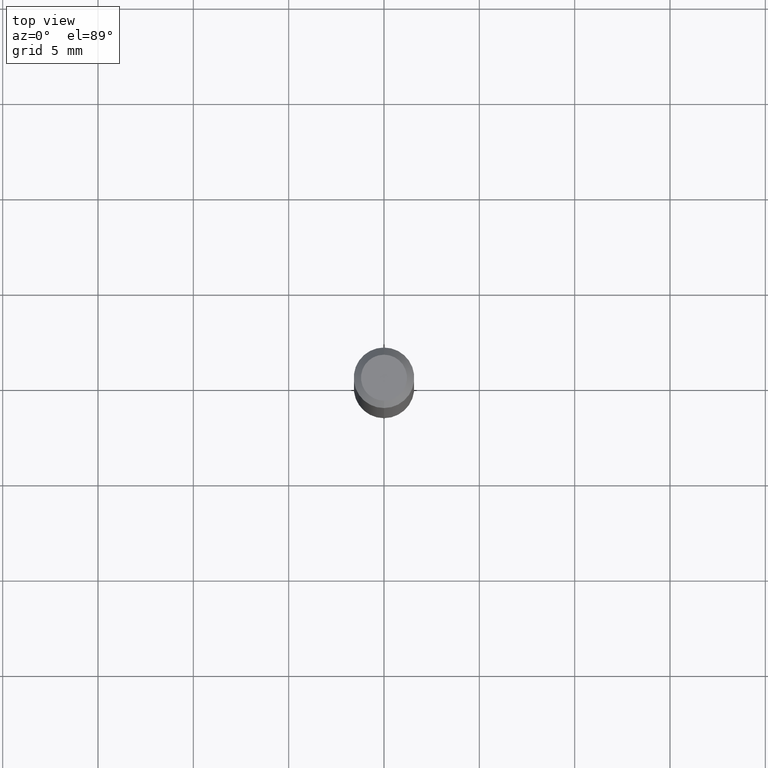
[diagram: clean part render]
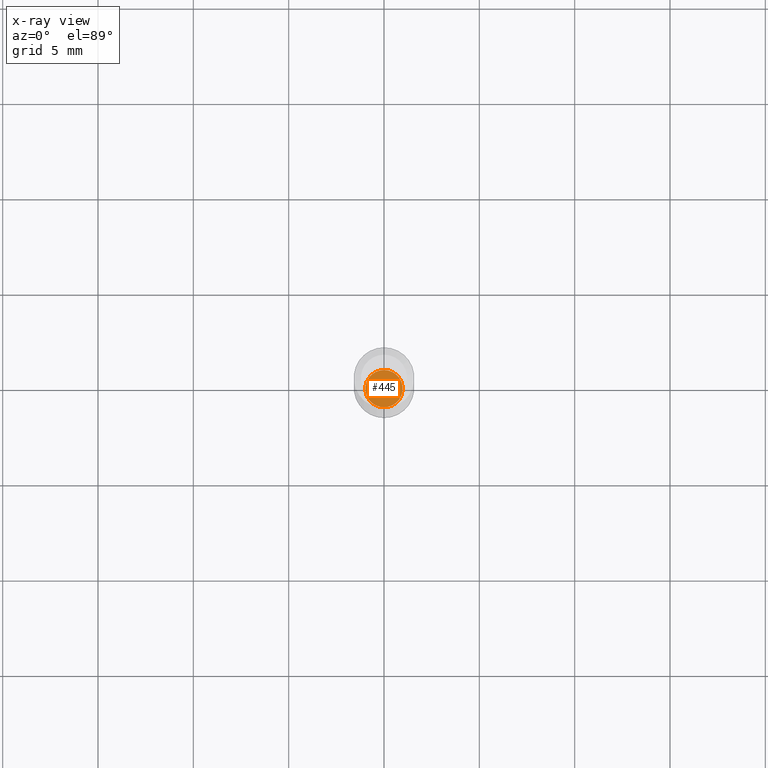
[diagram: x-ray — body ghosted, one internal face saturated and labeled with its STEP entity id]
A machine part, top view, then the same camera in x-ray: the body is ghosted and one INTERNAL B-rep face — a face not visible from any outside direction — is saturated and labeled: STEP entity #445.
In plain terms, the highlighted planar face has unit normal (-0, 0, 1).
Its self-contained STEP definition (entity closure, byte-faithful):
#20 = CIRCLE ( 'NONE', #318, 0.03855000000000000093 ) ;
#24 = DIRECTION ( 'NONE',  ( -6.982962677686265922E-15, -1.000000000000000000, 3.491139346140710505E-15 ) ) ;
#33 = ORIENTED_EDGE ( 'NONE', *, *, #254, .F. ) ;
#72 = CARTESIAN_POINT ( 'NONE',  ( -2.691932112247734171E-16, -0.03855000000000458060, -1.313000000000000389 ) ) ;
#111 = DIRECTION ( 'NONE',  ( -6.982962677686265133E-15, -1.000000000000000000, 0.000000000000000000 ) ) ;
#124 = AXIS2_PLACEMENT_3D ( 'NONE', #418, #459, #24 ) ;
#188 = CARTESIAN_POINT ( 'NONE',  ( 2.756905814749515687E-16, 0.03854999999999541432, -1.313000000000000389 ) ) ;
#216 = DIRECTION ( 'NONE',  ( -2.445707618412851174E-29, 3.491139346140710505E-15, 1.000000000000000000 ) ) ;
#238 = VERTEX_POINT ( 'NONE', #72 ) ;
#254 = EDGE_CURVE ( 'NONE', #238, #497, #20, .T. ) ;
#268 = ORIENTED_EDGE ( 'NONE', *, *, #421, .F. ) ;
#282 = CIRCLE ( 'NONE', #388, 0.03855000000000000093 ) ;
#318 = AXIS2_PLACEMENT_3D ( 'NONE', #468, #390, #111 ) ;
#383 = DIRECTION ( 'NONE',  ( -6.982962677686265133E-15, -1.000000000000000000, 0.000000000000000000 ) ) ;
#388 = AXIS2_PLACEMENT_3D ( 'NONE', #437, #216, #383 ) ;
#390 = DIRECTION ( 'NONE',  ( -2.445707618412851174E-29, 3.491139346140710505E-15, 1.000000000000000000 ) ) ;
#391 = EDGE_LOOP ( 'NONE', ( #33, #268 ) ) ;
#406 = FACE_OUTER_BOUND ( 'NONE', #391, .T. ) ;
#414 = PLANE ( 'NONE',  #124 ) ;
#418 = CARTESIAN_POINT ( 'NONE',  ( 3.211214102976074369E-29, -4.583865961482754014E-15, -1.313000000000000389 ) ) ;
#421 = EDGE_CURVE ( 'NONE', #497, #238, #282, .T. ) ;
#437 = CARTESIAN_POINT ( 'NONE',  ( 3.211214102976074369E-29, -4.583865961482754014E-15, -1.313000000000000389 ) ) ;
#445 = ADVANCED_FACE ( 'NONE', ( #406 ), #414, .F. ) ;
#459 = DIRECTION ( 'NONE',  ( -2.445707618412850893E-29, 3.491139346140710505E-15, 1.000000000000000000 ) ) ;
#468 = CARTESIAN_POINT ( 'NONE',  ( 3.211214102976074369E-29, -4.583865961482754014E-15, -1.313000000000000389 ) ) ;
#497 = VERTEX_POINT ( 'NONE', #188 ) ;